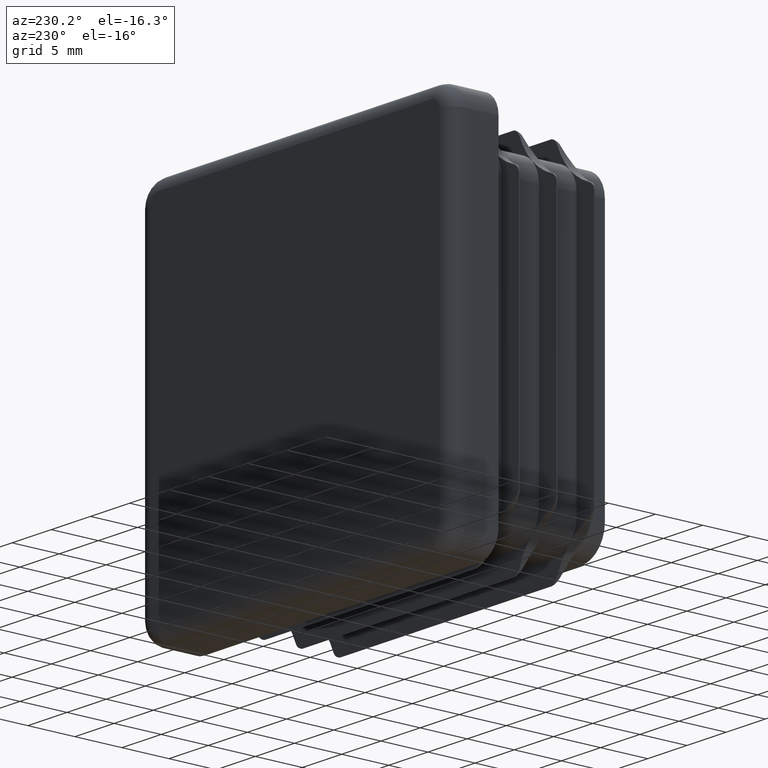
[diagram: clean part render]
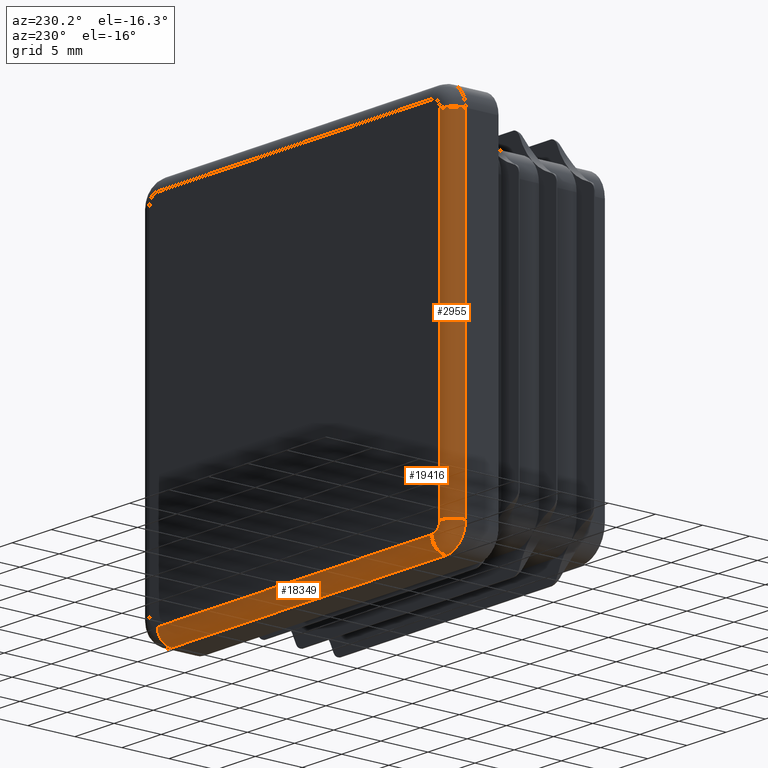
[diagram: same view with one multi-face feature highlighted, each face labeled with its STEP entity id]
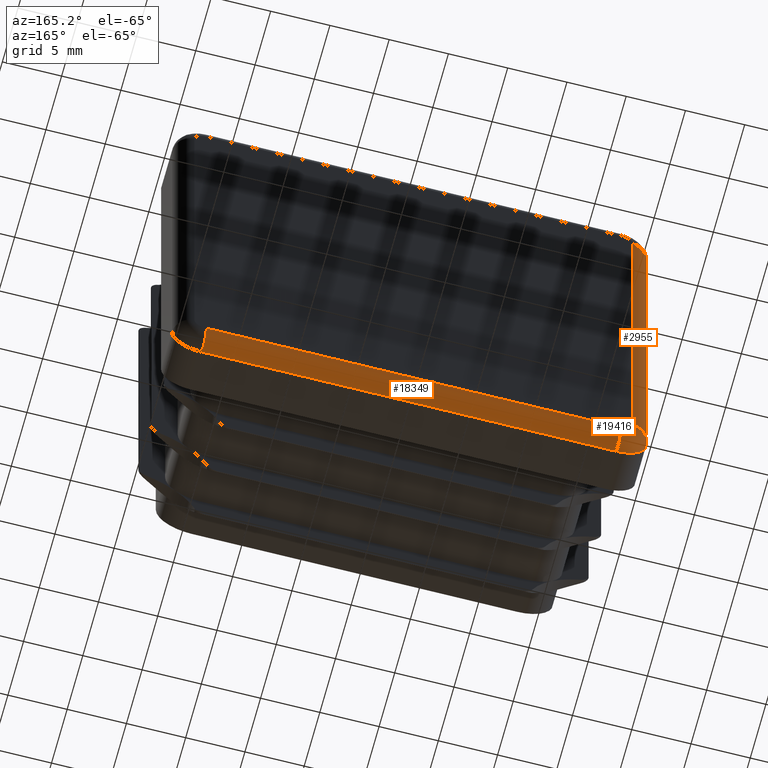
[diagram: same view with one multi-face feature highlighted, each face labeled with its STEP entity id]
A machine part, auxiliary view. The highlighted faces form ONE feature: a constant-radius fillet chain: 3 tangent blend faces with common blend radius 1.5 mm. The faces share edges in the B-rep.
A second angle (auxiliary view) of the same feature is appended — it is thin or edge-on in the first view.
Their STEP definitions:
[1] entity #2955 (Cylinder):
#2652 = LINE ( 'NONE', #9703, #6898 ) ;
#2955 = ADVANCED_FACE ( 'NONE', ( #15402 ), #8445, .T. ) ;
#4647 = DIRECTION ( 'NONE',  ( 2.312964634635746211E-15, -0.000000000000000000, 1.000000000000000000 ) ) ;
#4698 = EDGE_CURVE ( 'NONE', #14920, #8078, #11842, .T. ) ;
#5177 = AXIS2_PLACEMENT_3D ( 'NONE', #9679, #17734, #9874 ) ;
#6045 = CIRCLE ( 'NONE', #5177, 1.500000000000001332 ) ;
#6323 = CARTESIAN_POINT ( 'NONE',  ( -18.49999999999999645, 3.500000000000000000, 17.50000000000000355 ) ) ;
#6668 = DIRECTION ( 'NONE',  ( -8.673617379884035472E-17, -0.000000000000000000, -1.000000000000000000 ) ) ;
#6898 = VECTOR ( 'NONE', #6668, 1000.000000000000000 ) ;
#7523 = VERTEX_POINT ( 'NONE', #7534 ) ;
#7534 = CARTESIAN_POINT ( 'NONE',  ( -19.99999999999999645, 3.500000000000000000, -17.49999999999999645 ) ) ;
#7787 = AXIS2_PLACEMENT_3D ( 'NONE', #6323, #4647, #7915 ) ;
#7915 = DIRECTION ( 'NONE',  ( 1.000000000000000000, 0.000000000000000000, -2.312964634635740689E-15 ) ) ;
#8078 = VERTEX_POINT ( 'NONE', #9592 ) ;
#8309 = AXIS2_PLACEMENT_3D ( 'NONE', #19900, #8657, #16509 ) ;
#8445 = CYLINDRICAL_SURFACE ( 'NONE', #8309, 1.500000000000001332 ) ;
#8657 = DIRECTION ( 'NONE',  ( -8.673617379884035472E-17, 0.000000000000000000, -1.000000000000000000 ) ) ;
#8709 = ORIENTED_EDGE ( 'NONE', *, *, #15058, .F. ) ;
#8981 = EDGE_CURVE ( 'NONE', #9988, #7523, #6045, .T. ) ;
#9592 = CARTESIAN_POINT ( 'NONE',  ( -19.99999999999999289, 3.500000000000000000, 17.50000000000000711 ) ) ;
#9679 = CARTESIAN_POINT ( 'NONE',  ( -18.50000000000000000, 3.500000000000000000, -17.49999999999999645 ) ) ;
#9703 = CARTESIAN_POINT ( 'NONE',  ( -19.99999999999999645, 3.500000000000000000, -17.49999999999999645 ) ) ;
#9874 = DIRECTION ( 'NONE',  ( 1.000000000000000000, 0.000000000000000000, 0.000000000000000000 ) ) ;
#9988 = VERTEX_POINT ( 'NONE', #18293 ) ;
#10538 = CARTESIAN_POINT ( 'NONE',  ( -18.49999999999999645, 5.000000000000000000, 17.50000000000000355 ) ) ;
#10745 = VECTOR ( 'NONE', #15982, 1000.000000000000000 ) ;
#11724 = EDGE_LOOP ( 'NONE', ( #12270, #8709, #17087, #12754 ) ) ;
#11842 = CIRCLE ( 'NONE', #7787, 1.500000000000001332 ) ;
#12270 = ORIENTED_EDGE ( 'NONE', *, *, #8981, .T. ) ;
#12754 = ORIENTED_EDGE ( 'NONE', *, *, #18176, .F. ) ;
#12847 = CARTESIAN_POINT ( 'NONE',  ( -18.49999999999999645, 5.000000000000000000, 17.50000000000000711 ) ) ;
#14261 = LINE ( 'NONE', #12847, #10745 ) ;
#14920 = VERTEX_POINT ( 'NONE', #10538 ) ;
#15058 = EDGE_CURVE ( 'NONE', #8078, #7523, #2652, .T. ) ;
#15402 = FACE_OUTER_BOUND ( 'NONE', #11724, .T. ) ;
#15982 = DIRECTION ( 'NONE',  ( 8.673617379884035472E-17, -0.000000000000000000, 1.000000000000000000 ) ) ;
#16509 = DIRECTION ( 'NONE',  ( -1.000000000000000000, 0.000000000000000000, 8.673617379884023146E-17 ) ) ;
#17087 = ORIENTED_EDGE ( 'NONE', *, *, #4698, .F. ) ;
#17734 = DIRECTION ( 'NONE',  ( 0.000000000000000000, -0.000000000000000000, 1.000000000000000000 ) ) ;
#18176 = EDGE_CURVE ( 'NONE', #9988, #14920, #14261, .T. ) ;
#18293 = CARTESIAN_POINT ( 'NONE',  ( -18.50000000000000000, 5.000000000000000000, -17.49999999999999645 ) ) ;
#19900 = CARTESIAN_POINT ( 'NONE',  ( -18.49999999999999645, 3.500000000000000000, 1.604619215278546168E-15 ) ) ;
[2] entity #19416 (Torus):
#41 = TOROIDAL_SURFACE ( 'NONE', #13767, 1.000000000000000000, 1.500000000000000000 ) ;
#1109 = DIRECTION ( 'NONE',  ( 0.000000000000000000, 0.000000000000000000, 1.000000000000000000 ) ) ;
#1239 = VERTEX_POINT ( 'NONE', #13082 ) ;
#1792 = DIRECTION ( 'NONE',  ( 1.000000000000000000, 0.000000000000000000, 0.000000000000000000 ) ) ;
#2612 = CARTESIAN_POINT ( 'NONE',  ( -17.49999999999999645, 3.500000000000000000, -17.49999999999999645 ) ) ;
#3225 = EDGE_CURVE ( 'NONE', #1239, #10003, #12628, .T. ) ;
#3252 = DIRECTION ( 'NONE',  ( 0.000000000000000000, 0.000000000000000000, -1.000000000000000000 ) ) ;
#4195 = DIRECTION ( 'NONE',  ( -0.000000000000000000, -1.000000000000000000, -0.000000000000000000 ) ) ;
#5177 = AXIS2_PLACEMENT_3D ( 'NONE', #9679, #17734, #9874 ) ;
#5374 = EDGE_CURVE ( 'NONE', #7523, #1239, #18530, .T. ) ;
#6045 = CIRCLE ( 'NONE', #5177, 1.500000000000001332 ) ;
#7285 = FACE_OUTER_BOUND ( 'NONE', #9624, .T. ) ;
#7329 = CARTESIAN_POINT ( 'NONE',  ( -17.49999999999999645, 3.500000000000000000, -17.49999999999999645 ) ) ;
#7523 = VERTEX_POINT ( 'NONE', #7534 ) ;
#7534 = CARTESIAN_POINT ( 'NONE',  ( -19.99999999999999645, 3.500000000000000000, -17.49999999999999645 ) ) ;
#8981 = EDGE_CURVE ( 'NONE', #9988, #7523, #6045, .T. ) ;
#9098 = ORIENTED_EDGE ( 'NONE', *, *, #8981, .F. ) ;
#9546 = DIRECTION ( 'NONE',  ( 0.000000000000000000, 1.000000000000000000, 0.000000000000000000 ) ) ;
#9624 = EDGE_LOOP ( 'NONE', ( #15770, #11031, #9098, #11912 ) ) ;
#9679 = CARTESIAN_POINT ( 'NONE',  ( -18.50000000000000000, 3.500000000000000000, -17.49999999999999645 ) ) ;
#9874 = DIRECTION ( 'NONE',  ( 1.000000000000000000, 0.000000000000000000, 0.000000000000000000 ) ) ;
#9988 = VERTEX_POINT ( 'NONE', #18293 ) ;
#10003 = VERTEX_POINT ( 'NONE', #13512 ) ;
#10081 = AXIS2_PLACEMENT_3D ( 'NONE', #15884, #9546, #14421 ) ;
#10188 = EDGE_CURVE ( 'NONE', #10003, #9988, #11972, .T. ) ;
#11031 = ORIENTED_EDGE ( 'NONE', *, *, #5374, .F. ) ;
#11912 = ORIENTED_EDGE ( 'NONE', *, *, #10188, .F. ) ;
#11972 = CIRCLE ( 'NONE', #10081, 1.000000000000000888 ) ;
#12628 = CIRCLE ( 'NONE', #16424, 1.500000000000001332 ) ;
#13082 = CARTESIAN_POINT ( 'NONE',  ( -17.49999999999999645, 3.500000000000000000, -19.99999999999999645 ) ) ;
#13512 = CARTESIAN_POINT ( 'NONE',  ( -17.49999999999999645, 5.000000000000000000, -18.49999999999999645 ) ) ;
#13767 = AXIS2_PLACEMENT_3D ( 'NONE', #2612, #18299, #15277 ) ;
#14421 = DIRECTION ( 'NONE',  ( 0.000000000000000000, 0.000000000000000000, 1.000000000000000000 ) ) ;
#15277 = DIRECTION ( 'NONE',  ( 0.000000000000000000, 0.000000000000000000, 1.000000000000000000 ) ) ;
#15770 = ORIENTED_EDGE ( 'NONE', *, *, #3225, .F. ) ;
#15884 = CARTESIAN_POINT ( 'NONE',  ( -17.49999999999999645, 5.000000000000000000, -17.49999999999999645 ) ) ;
#16424 = AXIS2_PLACEMENT_3D ( 'NONE', #20596, #1792, #3252 ) ;
#17631 = AXIS2_PLACEMENT_3D ( 'NONE', #7329, #4195, #1109 ) ;
#17734 = DIRECTION ( 'NONE',  ( 0.000000000000000000, -0.000000000000000000, 1.000000000000000000 ) ) ;
#18293 = CARTESIAN_POINT ( 'NONE',  ( -18.50000000000000000, 5.000000000000000000, -17.49999999999999645 ) ) ;
#18299 = DIRECTION ( 'NONE',  ( 0.000000000000000000, 1.000000000000000000, 0.000000000000000000 ) ) ;
#18530 = CIRCLE ( 'NONE', #17631, 2.500000000000000444 ) ;
#19416 = ADVANCED_FACE ( 'NONE', ( #7285 ), #41, .T. ) ;
#20596 = CARTESIAN_POINT ( 'NONE',  ( -17.49999999999999645, 3.500000000000000000, -18.49999999999999645 ) ) ;
[3] entity #18349 (Cylinder):
#1239 = VERTEX_POINT ( 'NONE', #13082 ) ;
#1536 = CIRCLE ( 'NONE', #18980, 1.500000000000001332 ) ;
#1792 = DIRECTION ( 'NONE',  ( 1.000000000000000000, 0.000000000000000000, 0.000000000000000000 ) ) ;
#2631 = DIRECTION ( 'NONE',  ( 1.000000000000000000, -0.000000000000000000, 0.000000000000000000 ) ) ;
#3225 = EDGE_CURVE ( 'NONE', #1239, #10003, #12628, .T. ) ;
#3252 = DIRECTION ( 'NONE',  ( 0.000000000000000000, 0.000000000000000000, -1.000000000000000000 ) ) ;
#3592 = VECTOR ( 'NONE', #12298, 1000.000000000000000 ) ;
#3828 = DIRECTION ( 'NONE',  ( 1.000000000000000000, 0.000000000000000000, 0.000000000000000000 ) ) ;
#4075 = VECTOR ( 'NONE', #6399, 1000.000000000000000 ) ;
#5182 = CARTESIAN_POINT ( 'NONE',  ( 17.50000000000000711, 3.500000000000000000, -19.99999999999999645 ) ) ;
#5996 = VERTEX_POINT ( 'NONE', #5182 ) ;
#6066 = CYLINDRICAL_SURFACE ( 'NONE', #15367, 1.500000000000001332 ) ;
#6399 = DIRECTION ( 'NONE',  ( 1.000000000000000000, -0.000000000000000000, -0.000000000000000000 ) ) ;
#6537 = CARTESIAN_POINT ( 'NONE',  ( 17.50000000000000711, 3.500000000000000000, -19.99999999999999645 ) ) ;
#7245 = CARTESIAN_POINT ( 'NONE',  ( 17.50000000000000711, 3.500000000000000000, -18.49999999999999645 ) ) ;
#7839 = EDGE_CURVE ( 'NONE', #14883, #10003, #17482, .T. ) ;
#8239 = ORIENTED_EDGE ( 'NONE', *, *, #7839, .F. ) ;
#9279 = ORIENTED_EDGE ( 'NONE', *, *, #9712, .F. ) ;
#9554 = EDGE_CURVE ( 'NONE', #5996, #14883, #1536, .T. ) ;
#9712 = EDGE_CURVE ( 'NONE', #1239, #5996, #17725, .T. ) ;
#9885 = ORIENTED_EDGE ( 'NONE', *, *, #9554, .F. ) ;
#10003 = VERTEX_POINT ( 'NONE', #13512 ) ;
#10185 = CARTESIAN_POINT ( 'NONE',  ( 0.000000000000000000, 3.500000000000000000, -18.49999999999999645 ) ) ;
#10263 = FACE_OUTER_BOUND ( 'NONE', #14246, .T. ) ;
#10553 = ORIENTED_EDGE ( 'NONE', *, *, #3225, .T. ) ;
#10966 = CARTESIAN_POINT ( 'NONE',  ( -17.49999999999999645, 5.000000000000000000, -18.49999999999999645 ) ) ;
#12298 = DIRECTION ( 'NONE',  ( -1.000000000000000000, 0.000000000000000000, 0.000000000000000000 ) ) ;
#12628 = CIRCLE ( 'NONE', #16424, 1.500000000000001332 ) ;
#13082 = CARTESIAN_POINT ( 'NONE',  ( -17.49999999999999645, 3.500000000000000000, -19.99999999999999645 ) ) ;
#13512 = CARTESIAN_POINT ( 'NONE',  ( -17.49999999999999645, 5.000000000000000000, -18.49999999999999645 ) ) ;
#14246 = EDGE_LOOP ( 'NONE', ( #10553, #8239, #9885, #9279 ) ) ;
#14883 = VERTEX_POINT ( 'NONE', #18437 ) ;
#15362 = DIRECTION ( 'NONE',  ( 0.000000000000000000, 0.000000000000000000, -1.000000000000000000 ) ) ;
#15367 = AXIS2_PLACEMENT_3D ( 'NONE', #10185, #3828, #19703 ) ;
#16424 = AXIS2_PLACEMENT_3D ( 'NONE', #20596, #1792, #3252 ) ;
#17482 = LINE ( 'NONE', #10966, #3592 ) ;
#17725 = LINE ( 'NONE', #6537, #4075 ) ;
#18349 = ADVANCED_FACE ( 'NONE', ( #10263 ), #6066, .T. ) ;
#18437 = CARTESIAN_POINT ( 'NONE',  ( 17.50000000000000711, 5.000000000000000000, -18.50000000000000000 ) ) ;
#18980 = AXIS2_PLACEMENT_3D ( 'NONE', #7245, #2631, #15362 ) ;
#19703 = DIRECTION ( 'NONE',  ( 0.000000000000000000, 0.000000000000000000, -1.000000000000000000 ) ) ;
#20596 = CARTESIAN_POINT ( 'NONE',  ( -17.49999999999999645, 3.500000000000000000, -18.49999999999999645 ) ) ;